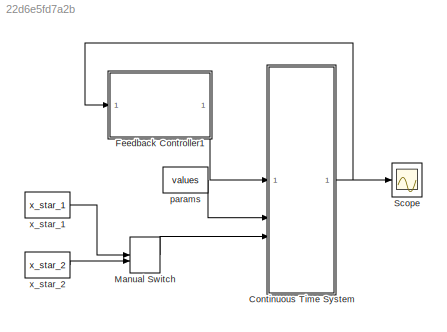
MODEL slx_22d6e5fd7a2b
KIND model
CONFIG AbsTol = auto
CONFIG EnableMultiTasking = off
CONFIG FixedStep = 0.001
CONFIG MaxStep = auto
CONFIG MinStep = auto
CONFIG RelTol = 1e-3
CONFIG SampleTimeConstraint = Unconstrained
CONFIG SolverName = FixedStepAuto
CONFIG StartTime = 0.0
CONFIG StopTime = 5
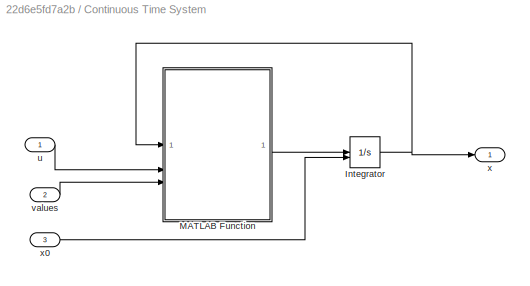
BLOCK [SubSystem] Continuous Time System
BLOCK [Integrator] Continuous Time System/Integrator
  InitialConditionSource = external
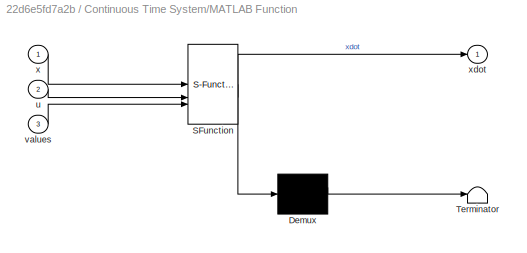
BLOCK [SubSystem] Continuous Time System/MATLAB Function
  ErrorFcn = Stateflow.Translate.translate
  PermitHierarchicalResolution = ExplicitOnly
  SFBlockType = MATLAB Function
  TreatAsAtomicUnit = on
BLOCK [Demux] Continuous Time System/MATLAB Function/ Demux 
  Outputs = 1
BLOCK [S-Function] Continuous Time System/MATLAB Function/ SFunction 
  EnableBusSupport = on
  FunctionName = sf_sfun
  PortCounts = [3 2]
  SFcnIsStateOwnerBlock = off
  SFunctionDeploymentMode = off
  Tag = Stateflow S-Function 2
BLOCK [Terminator] Continuous Time System/MATLAB Function/ Terminator 
BLOCK [Inport] Continuous Time System/MATLAB Function/u
  Port = 2
BLOCK [Inport] Continuous Time System/MATLAB Function/values
  Port = 3
BLOCK [Inport] Continuous Time System/MATLAB Function/x
BLOCK [Outport] Continuous Time System/MATLAB Function/xdot
BLOCK [Inport] Continuous Time System/u
BLOCK [Inport] Continuous Time System/values
  Port = 2
BLOCK [Outport] Continuous Time System/x
BLOCK [Inport] Continuous Time System/x0
  Port = 3
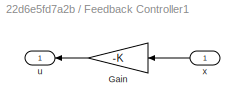
BLOCK [SubSystem] Feedback Controller1
BLOCK [Gain] Feedback Controller1/Gain
  Gain = -K
  Multiplication = Matrix(K*u)
  NameLocation = top
BLOCK [Outport] Feedback Controller1/u
  NameLocation = top
BLOCK [Inport] Feedback Controller1/x
  NameLocation = top
BLOCK [ManualSwitch] Manual Switch
  CurrentSetting = 0
BLOCK [Scope] Scope
  Floating = off
  NumInputPorts = 1
  ScopeSpecificationString = Simulink.scopes.TimeScopeBlockCfg('CurrentConfiguration', extmgr.ConfigurationSet(extmgr.Configuration('Core','General UI',true),extmgr.Configuration('Core','Source UI',true),extmgr.Configuration('Sources','WiredSimulink',true),extmgr.Configuration('Visuals','Time Domain',true,'SerializedDisplays',{struct('MinYLimReal','-1.25048','MaxYLimReal','11.25433','YLabelReal','','MinYLimMag','0.00000','Max...<+1670ch>
BLOCK [Constant] params
  Value = values
BLOCK [Constant] x_star_1
  Value = x_star_1
BLOCK [Constant] x_star_2
  Value = x_star_2
NET Continuous Time System/Integrator:1 -> Continuous Time System/MATLAB Function:1, Continuous Time System/x:1
LINE Continuous Time System/MATLAB Function:1 -> Continuous Time System/Integrator:1
LINE Continuous Time System/u:1 -> Continuous Time System/MATLAB Function:2
LINE Continuous Time System/values:1 -> Continuous Time System/MATLAB Function:3
LINE Continuous Time System/x0:1 -> Continuous Time System/Integrator:2
NET Continuous Time System:1 -> Feedback Controller1:1, Scope:1
LINE Feedback Controller1/Gain:1 -> Feedback Controller1/u:1
LINE Feedback Controller1/x:1 -> Feedback Controller1/Gain:1
LINE Feedback Controller1:1 -> Continuous Time System:1
LINE Manual Switch:1 -> Continuous Time System:3
LINE params:1 -> Continuous Time System:2
LINE x_star_1:1 -> Manual Switch:1
LINE x_star_2:1 -> Manual Switch:2
note: NET lines group one-source signal fan-out (src -> all destinations, sorted); 1:1 wires keep LINE
CHART Continuous Time System/MATLAB Function states=1 transitions=1
  STATE_LABEL 'eML_blk_kernel()'
  STATE_LABEL 'SCRIPT:\nfunction xdot = fcn(x, u, values)\n\nJ = values(2);\nL = values(3);\nKd = values(4);\nKe = values(5);\nKm = values(6);\nRm = values(7);\n\nxdot = [-Rm/L * x(1) - Ke/L * x(2) + 1/L * u;\n         Km/J * x(1) - Kd/J * x(2)];'
CHART  states=0 transitions=0
